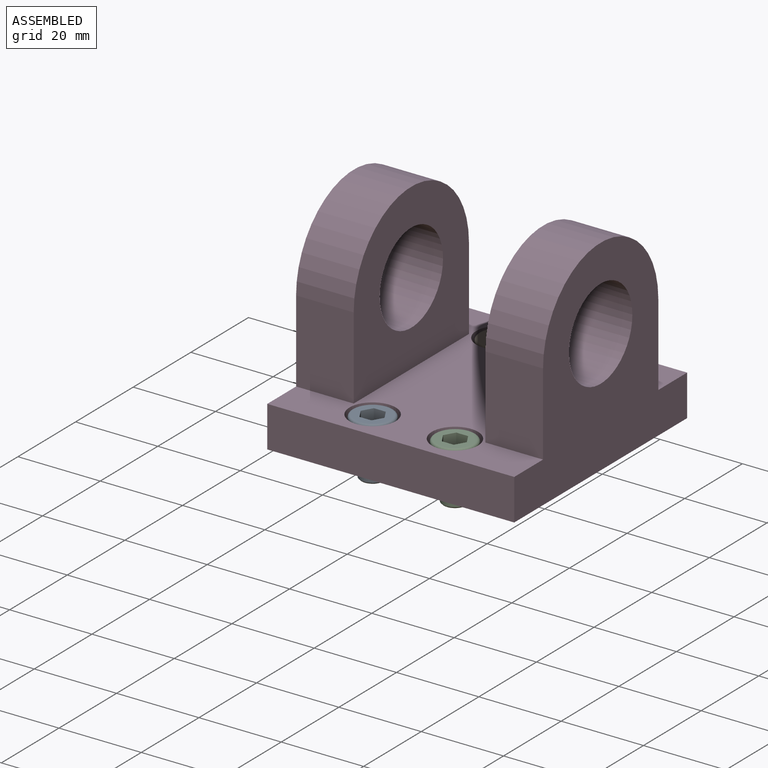
[diagram: assembled view]
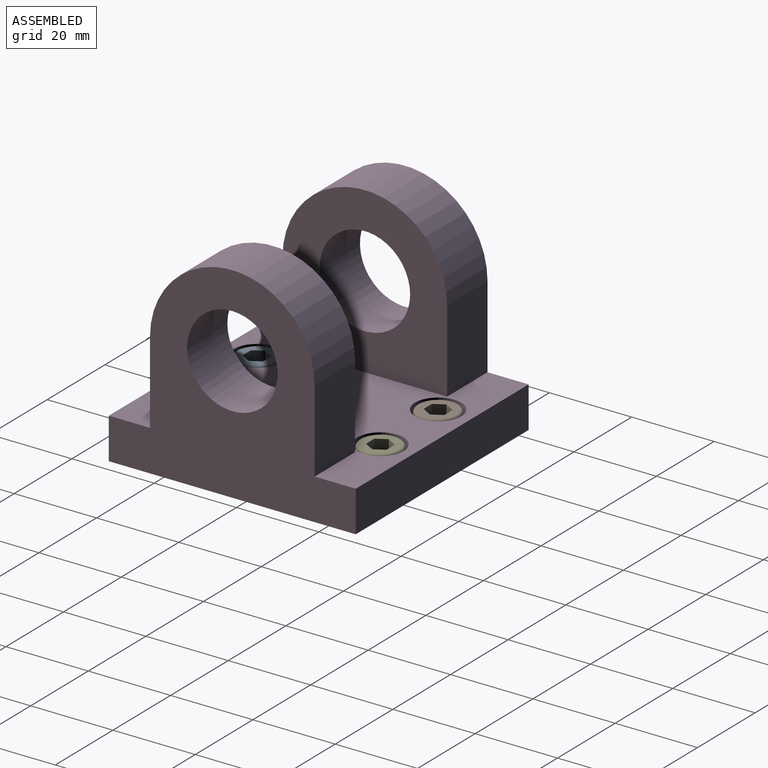
[diagram: assembled view, second angle]
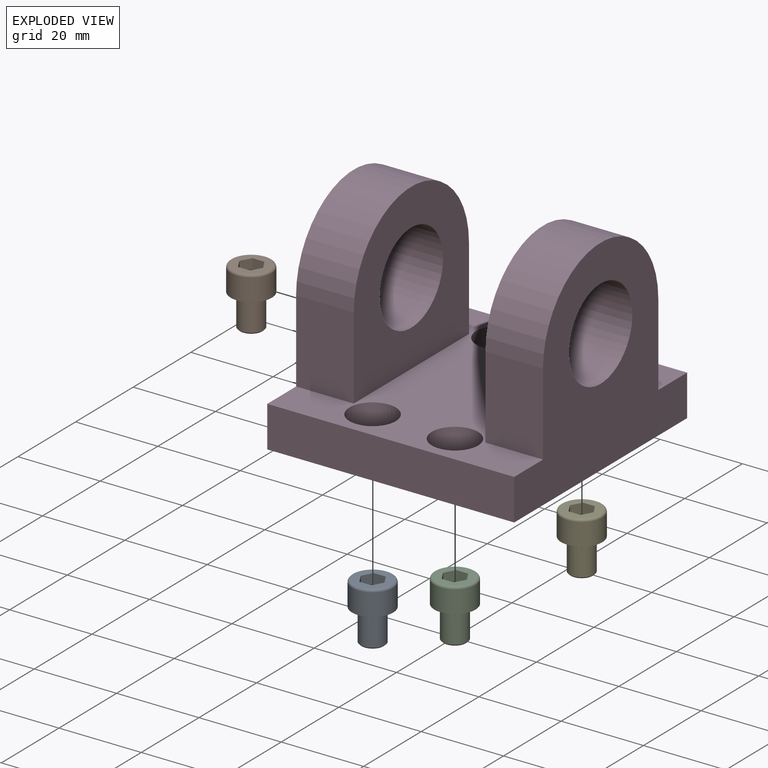
[diagram: exploded view]
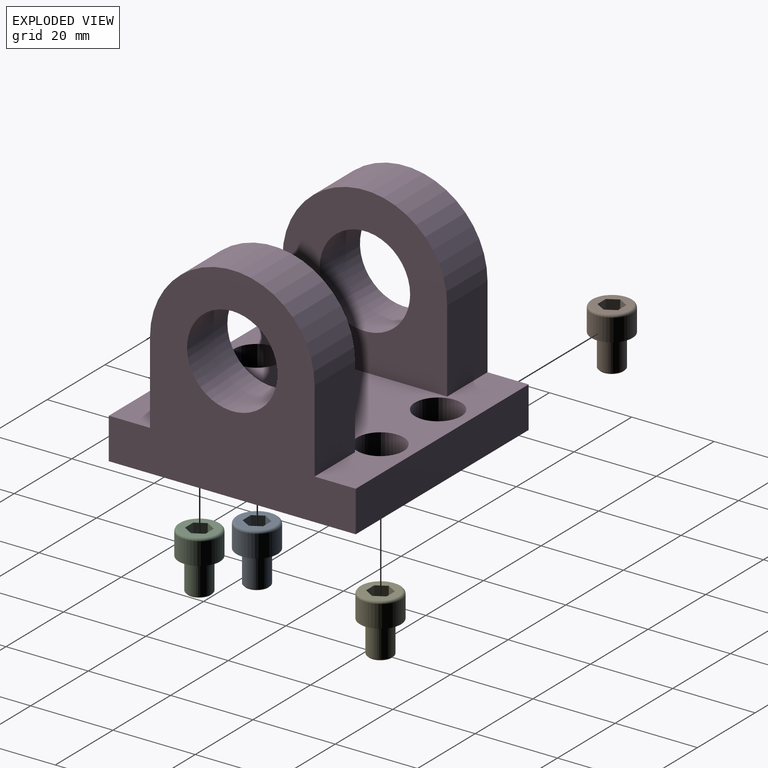
[diagram: exploded view, second angle]
ASSEMBLY  parts=5 mates=4
PART A: 15 faces, bbox 14x10.8x10.8 mm
  f0: cylinder r=5mm len=10mm, axis (1,0,0), area 169.6mm2, adj f1,f14
  f1: torus R=4.4mm, axis (1,0,0), area 28.3mm2, adj f0,f13
  f2: cone r=2.84mm half-angle=45deg, axis (-1,0,0), area 8.2mm2, adj f3,f12
  f3: cylinder r=3mm len=7.08mm, axis (1,0,0), area 133.4mm2, adj f2,f4
  f4: torus R=3.6mm, axis (1,0,0), area 19.1mm2, adj f3,f14
  f5: cone r=1.44mm half-angle=60deg, axis (-1,0,0), area 25mm2, adj f6,f7,f8,f9,f10,f11
  f6: plane 3.33x2.5mm, normal (0,0.5,0.87), area 9.1mm2, adj f5,f7,f9,f13
  f7: plane 3.33x2.5mm, normal (0,-0.5,0.87), area 9.1mm2, adj f5,f6,f8,f13
  f8: plane 3.26x2.89mm, normal (0,-1,0), area 9.1mm2, adj f5,f7,f10,f13
  f9: plane 3.33x2.89mm, normal (0,1,0), area 9.1mm2, adj f5,f6,f11,f13
  f10: plane 3.33x2.5mm, normal (0,-0.5,-0.87), area 9.1mm2, adj f5,f8,f11,f13
  f11: plane 3.33x2.5mm, normal (0,0.5,-0.87), area 9.1mm2, adj f5,f9,f10,f13
  f12: plane 5.35x5.35mm, normal (1,0,0), area 22.5mm2, adj f2
  f13: plane 8.8x8.8mm, normal (-1,0,0), area 39.2mm2, adj f1,f6,f7,f8,f9,f10,f11
  f14: plane 10x10mm, normal (1,0,0), area 37.8mm2, adj f0,f4
PART B: same geometry as A
PART C: same geometry as A
PART D: 28 faces, bbox 60x60x50 mm
  f0: plane 60x60mm, normal (0,0,1), area 2082.4mm2, adj f1,f2,f3,f5,f6,f7,f12,f15
  f1: plane 60x10mm, normal (0,-1,0), area 600mm2, adj f0,f3,f4,f16
  f2: plane 60x10mm, normal (0,1,0), area 600mm2, adj f0,f3,f4,f16
  f3: plane 60x50mm, normal (-1,0,0), area 1648.2mm2, adj f0,f1,f2,f4,f5,f7,f8,f9
  f4: plane 60x60mm, normal (0,0,-1), area 3463.2mm2, adj f1,f2,f3,f10,f13,f16,f22,f25
  f5: plane 20x14mm, normal (0,-1,0), area 280mm2, adj f0,f3,f6,f9
  f6: plane 40x40mm, normal (1,0,0), area 1048.2mm2, adj f0,f5,f7,f8,f9
  f7: plane 20x14mm, normal (0,1,0), area 280mm2, adj f0,f3,f6,f9
  f8: cylinder r=11mm len=22mm, axis (1,0,0), area 967.6mm2, adj f3,f6
  f9: cylinder r=20mm len=40mm, axis (1,0,0), area 879.6mm2, adj f3,f5,f6,f7
  f10: cylinder r=3.3mm len=6.6mm, axis (0,0,1), area 82.9mm2, adj f4,f11
  f11: plane 11.25x11.25mm, normal (0,0,1), area 65.2mm2, adj f10,f12
  f12: cylinder r=5.62mm len=11.25mm, axis (0,0,1), area 212.1mm2, adj f0,f11
  f13: cylinder r=3.3mm len=6.6mm, axis (0,0,1), area 82.9mm2, adj f4,f14
  f14: plane 11.25x11.25mm, normal (0,0,1), area 65.2mm2, adj f13,f15
  f15: cylinder r=5.62mm len=11.25mm, axis (0,0,1), area 212.1mm2, adj f0,f14
  f16: plane 60x50mm, normal (1,0,0), area 1648.2mm2, adj f0,f1,f2,f4,f17,f19,f20,f21
  f17: plane 20x14mm, normal (0,-1,0), area 280mm2, adj f0,f16,f18,f21
  f18: plane 40x40mm, normal (-1,0,0), area 1048.2mm2, adj f0,f17,f19,f20,f21
  f19: plane 20x14mm, normal (0,1,0), area 280mm2, adj f0,f16,f18,f21
  f20: cylinder r=11mm len=22mm, axis (-1,0,0), area 967.6mm2, adj f16,f18
  f21: cylinder r=20mm len=40mm, axis (-1,0,0), area 879.6mm2, adj f16,f17,f18,f19
  f22: cylinder r=3.3mm len=6.6mm, axis (0,0,1), area 82.9mm2, adj f4,f23
  f23: plane 11.25x11.25mm, normal (0,0,1), area 65.2mm2, adj f22,f24
  f24: cylinder r=5.62mm len=11.25mm, axis (0,0,1), area 212.1mm2, adj f0,f23
  f25: cylinder r=3.3mm len=6.6mm, axis (0,0,1), area 82.9mm2, adj f4,f26
  f26: plane 11.25x11.25mm, normal (0,0,1), area 65.2mm2, adj f25,f27
  f27: cylinder r=5.62mm len=11.25mm, axis (0,0,1), area 212.1mm2, adj f0,f26
PART E: same geometry as A
PLACE A rot(axis=(0,1,0),90deg) t=(-10,-74,34)mm
PLACE B rot(axis=(0,1,0),90deg) t=(-10,-30,34)mm
PLACE C rot(axis=(0,1,0),90deg) t=(10,-74,34)mm
PLACE D at identity
PLACE E rot(axis=(0,1,0),90deg) t=(10,-30,34)mm
MATE fastened B.f0 <-> D.f10  axis (0,0,-1) through (-10,-30,34)mm
MATE fastened C.f0 <-> D.f25  axis (0,0,-1) through (10,-74,34)mm
MATE fastened A.f0 <-> D.f13  axis (0,0,-1) through (-10,-74,34)mm
MATE fastened E.f0 <-> D.f22  axis (0,0,-1) through (10,-30,34)mm
